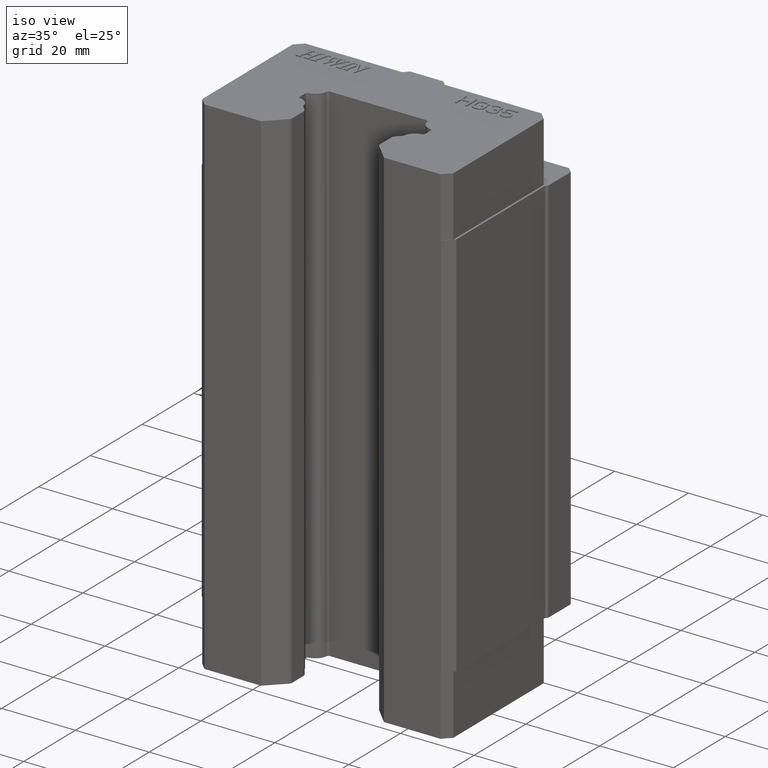
[diagram: clean part render]
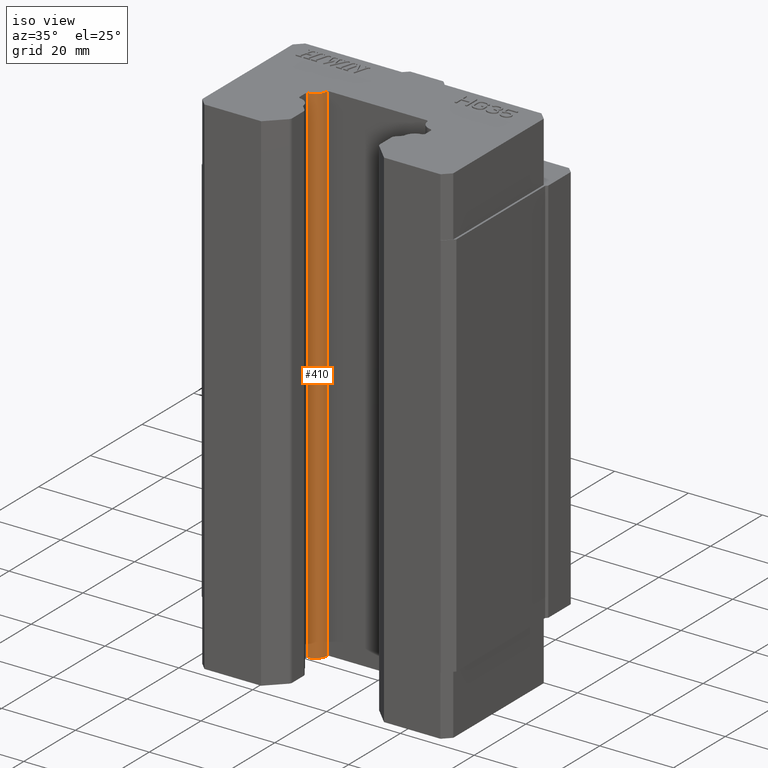
[diagram: same view with one face highlighted and labeled with its STEP entity id]
A machine part, iso view. The second image highlights one B-rep face of the part: STEP entity #410.
In plain terms, the highlighted cylindrical surface (edge-blend (fillet) strip) has radius 3.25 mm, axis along (0, 0, 1).
Its self-contained STEP definition (entity closure, byte-faithful):
#378 = ORIENTED_EDGE ( 'NONE', *, *, #379, .F. ) ;
#379 = EDGE_CURVE ( 'NONE', #11734, #393, #12392, .T. ) ;
#388 = EDGE_LOOP ( 'NONE', ( #400, #395, #378, #464 ) ) ;
#393 = VERTEX_POINT ( 'NONE', #12427 ) ;
#394 = VERTEX_POINT ( 'NONE', #12426 ) ;
#395 = ORIENTED_EDGE ( 'NONE', *, *, #402, .F. ) ;
#400 = ORIENTED_EDGE ( 'NONE', *, *, #401, .T. ) ;
#401 = EDGE_CURVE ( 'NONE', #11656, #394, #12424, .T. ) ;
#402 = EDGE_CURVE ( 'NONE', #393, #394, #12419, .T. ) ;
#410 = ADVANCED_FACE ( 'NONE', ( #12406 ), #12405, .T. ) ;
#464 = ORIENTED_EDGE ( 'NONE', *, *, #11733, .T. ) ;
#6962 = CARTESIAN_POINT ( 'NONE',  ( -16.62260214931227900, -3.371180793077267700, -69.09999999999999400 ) ) ;
#7082 = DIRECTION ( 'NONE',  ( 0.0000000000000000000, 0.0000000000000000000, -1.000000000000000000 ) ) ;
#7083 = VECTOR ( 'NONE', #7082, 1000.000000000000000 ) ;
#7084 = CARTESIAN_POINT ( 'NONE',  ( -16.62260214931007200, -3.371180793077100300, -52.90000000000000600 ) ) ;
#7085 = LINE ( 'NONE', #7084, #7083 ) ;
#7142 = CARTESIAN_POINT ( 'NONE',  ( -16.62260214931227900, -3.371180793077267700, 69.09999999999999400 ) ) ;
#11656 = VERTEX_POINT ( 'NONE', #6962 ) ;
#11733 = EDGE_CURVE ( 'NONE', #11734, #11656, #7085, .T. ) ;
#11734 = VERTEX_POINT ( 'NONE', #7142 ) ;
#12388 = DIRECTION ( 'NONE',  ( 1.000000000000000000, 0.0000000000000000000, 0.0000000000000000000 ) ) ;
#12389 = DIRECTION ( 'NONE',  ( 0.0000000000000000000, 0.0000000000000000000, 1.000000000000000000 ) ) ;
#12390 = CARTESIAN_POINT ( 'NONE',  ( -16.86757359313000000, -0.1304264068712000000, 69.09999999999999400 ) ) ;
#12391 = AXIS2_PLACEMENT_3D ( 'NONE', #12390, #12389, #12388 ) ;
#12392 = CIRCLE ( 'NONE', #12391, 3.249999999999999600 ) ;
#12403 = CARTESIAN_POINT ( 'NONE',  ( -16.86757359313000000, -0.1304264068712000000, -52.90000000000000600 ) ) ;
#12404 = AXIS2_PLACEMENT_3D ( 'NONE', #12403, #12465, #12464 ) ;
#12405 = CYLINDRICAL_SURFACE ( 'NONE', #12404, 3.249999999999999600 ) ;
#12406 = FACE_OUTER_BOUND ( 'NONE', #388, .T. ) ;
#12416 = DIRECTION ( 'NONE',  ( 0.0000000000000000000, 0.0000000000000000000, -1.000000000000000000 ) ) ;
#12417 = VECTOR ( 'NONE', #12416, 1000.000000000000000 ) ;
#12418 = CARTESIAN_POINT ( 'NONE',  ( -13.62681920692000000, -0.3753978506847000000, -52.90000000000000600 ) ) ;
#12419 = LINE ( 'NONE', #12418, #12417 ) ;
#12420 = DIRECTION ( 'NONE',  ( 1.000000000000000000, 0.0000000000000000000, 0.0000000000000000000 ) ) ;
#12421 = DIRECTION ( 'NONE',  ( 0.0000000000000000000, 0.0000000000000000000, 1.000000000000000000 ) ) ;
#12422 = CARTESIAN_POINT ( 'NONE',  ( -16.86757359313000000, -0.1304264068712000000, -69.09999999999999400 ) ) ;
#12423 = AXIS2_PLACEMENT_3D ( 'NONE', #12422, #12421, #12420 ) ;
#12424 = CIRCLE ( 'NONE', #12423, 3.249999999999999600 ) ;
#12426 = CARTESIAN_POINT ( 'NONE',  ( -13.62681920692195400, -0.3753978506866541000, -69.09999999999999400 ) ) ;
#12427 = CARTESIAN_POINT ( 'NONE',  ( -13.62681920692195400, -0.3753978506866547700, 69.09999999999999400 ) ) ;
#12464 = DIRECTION ( 'NONE',  ( 1.000000000000000000, 0.0000000000000000000, 0.0000000000000000000 ) ) ;
#12465 = DIRECTION ( 'NONE',  ( 0.0000000000000000000, 0.0000000000000000000, 1.000000000000000000 ) ) ;